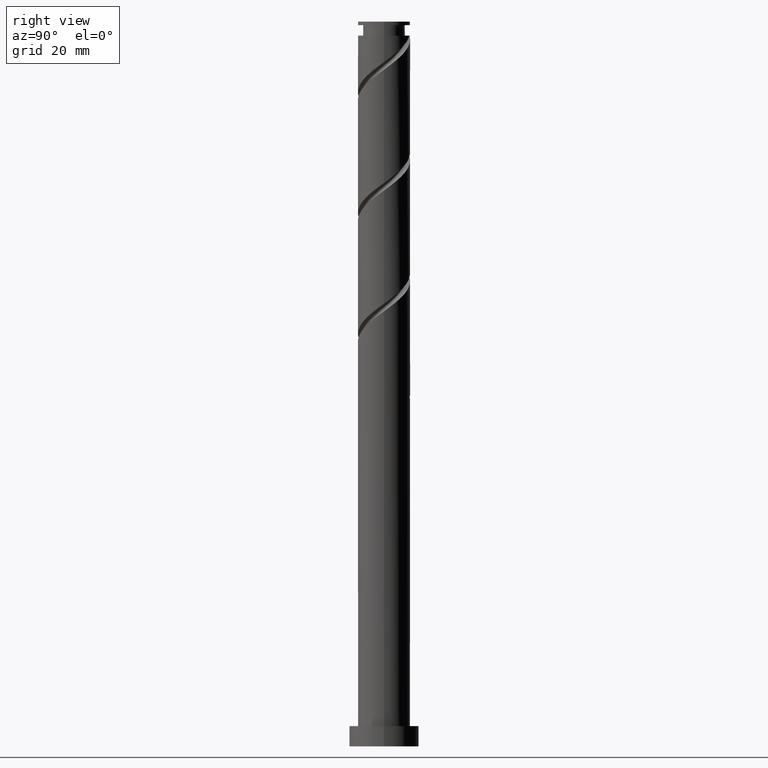
[diagram: clean part render]
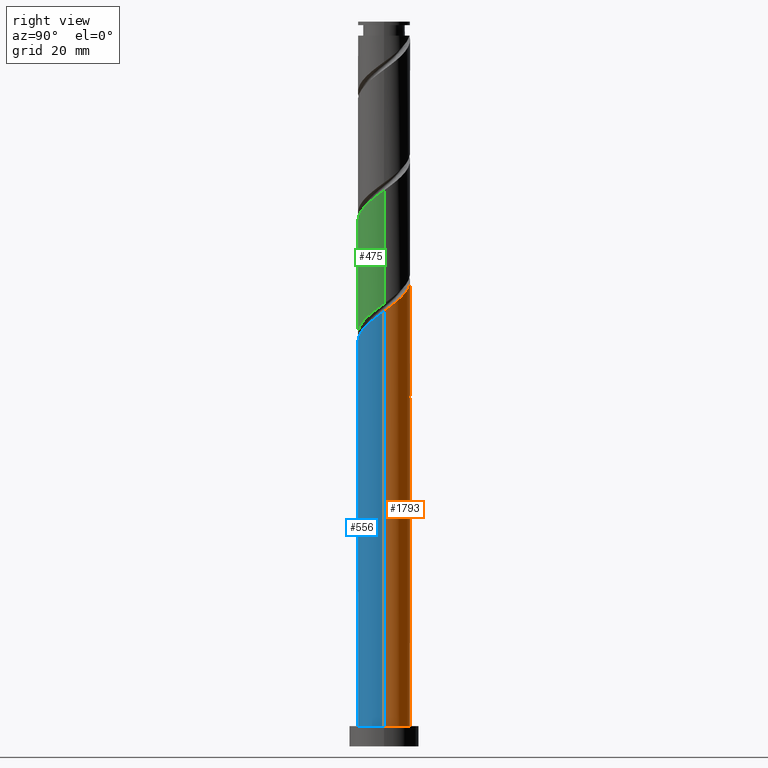
[diagram: same view with three faces highlighted in distinct colors, each labeled with its STEP entity id]
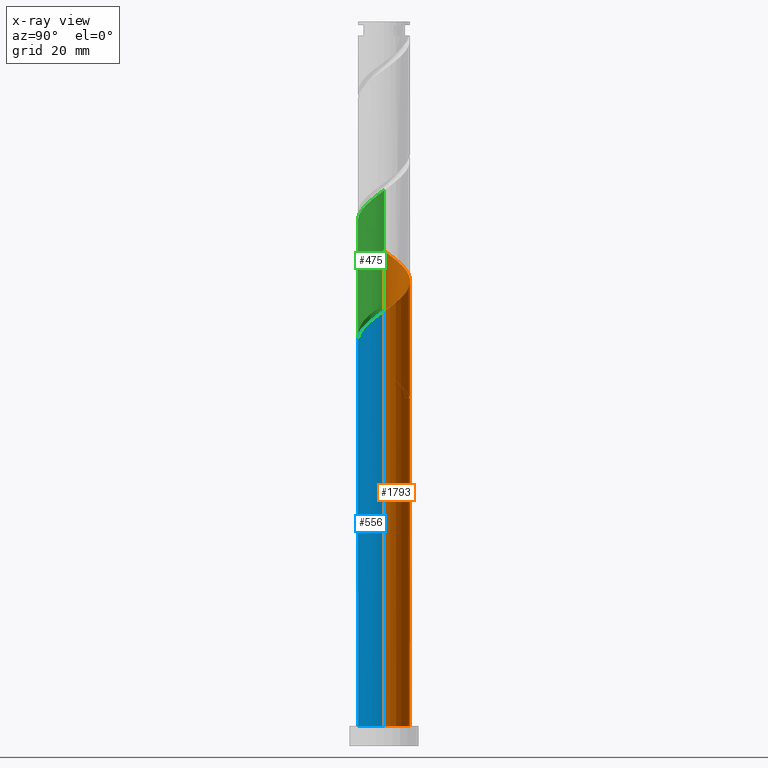
[diagram: x-ray of the same camera — body ghosted, the three highlighted faces saturated]
A machine part, right view with three faces highlighted in distinct colors.
The next image is the same camera in x-ray (body ghosted, the three faces saturated) — at least one of them is partly hidden behind the body in this view.
Their STEP definitions:

[orange] entity #1793 — the highlighted cylindrical surface (edge-blend (fillet) strip) has radius 9 mm, axis along (-0, -0, -1).
#12 = DIRECTION ( 'NONE',  ( -0.000000000000000000, -0.000000000000000000, -1.000000000000000000 ) ) ;
#24 = CARTESIAN_POINT ( 'NONE',  ( -8.539813800928584442, 2.841052665029229818, 129.7784996497130123 ) ) ;
#69 = CARTESIAN_POINT ( 'NONE',  ( 4.508176021938681721, 7.789502484447728747, 157.0220893933027355 ) ) ;
#92 = CARTESIAN_POINT ( 'NONE',  ( -7.189307669428963266, 5.414227113290511539, 166.6374740086874340 ) ) ;
#115 = ORIENTED_EDGE ( 'NONE', *, *, #242, .F. ) ;
#123 = CARTESIAN_POINT ( 'NONE',  ( -1.790977386791916759, 8.820000000000012719, 120.1631150343283565 ) ) ;
#155 = CARTESIAN_POINT ( 'NONE',  ( -3.562359181962302390, 8.336894157746552736, 124.1695252907385907 ) ) ;
#163 = LINE ( 'NONE', #321, #752 ) ;
#180 = VERTEX_POINT ( 'NONE', #1171 ) ;
#192 =( BOUNDED_CURVE ( )  B_SPLINE_CURVE ( 2, ( #123, #1445, #971, #1812, #846, #280, #1539, #249, #821, #1835, #542, #563, #1408 ),
 .UNSPECIFIED., .F., .T. ) 
 B_SPLINE_CURVE_WITH_KNOTS ( ( 3, 2, 2, 2, 2, 2, 3 ),
 ( 0.000000000000000000, 0.009615384615384581224, 0.01923076923076927347, 0.02884615384615385469, 0.03846153846153843592, 0.04807692307692312816, 0.05452716259738338983 ),
 .UNSPECIFIED. ) 
 CURVE ( )  GEOMETRIC_REPRESENTATION_ITEM ( )  RATIONAL_B_SPLINE_CURVE ( ( 0.9090909090909219392, 0.9024626128164257022, 0.9090909090909219392, 0.9024626128164257022, 0.9090909090909219392, 0.9024626128164257022, 0.9090909090909219392, 0.9024626128164257022, 0.9090909090909219392, 0.9024626128164257022, 0.9090909090909219392, 0.9046444828382820269, 0.9061636035682769652 ) ) 
 REPRESENTATION_ITEM ( '' )  );
#200 = CARTESIAN_POINT ( 'NONE',  ( 6.241326581552883113, 6.484276559678931129, 155.4195252907386759 ) ) ;
#209 = CARTESIAN_POINT ( 'NONE',  ( -9.000000000000010658, -2.542509550658754129E-15, 129.2518598251031960 ) ) ;
#220 = CARTESIAN_POINT ( 'NONE',  ( 5.453992861915053503, 7.242110811148886995, 156.2208073420206063 ) ) ;
#233 = CARTESIAN_POINT ( 'NONE',  ( -8.276108812811237669, 3.536385572658670817, 168.2400381112515220 ) ) ;
#242 = EDGE_CURVE ( 'NONE', #852, #1554, #581, .T. ) ;
#249 = CARTESIAN_POINT ( 'NONE',  ( -7.846713863140430512, 4.541287118073438656, 125.7720893933027213 ) ) ;
#280 = CARTESIAN_POINT ( 'NONE',  ( -6.531901475717493355, 6.287167108507581759, 124.1695252907385907 ) ) ;
#284 = CARTESIAN_POINT ( 'NONE',  ( 1.790977386791919423, 8.819999999999998508, 120.1631150343283565 ) ) ;
#304 = EDGE_CURVE ( 'NONE', #670, #1554, #452, .T. ) ;
#311 = DIRECTION ( 'NONE',  ( -6.847750913376839834E-30, -1.156482317317872080E-14, -1.000000000000000000 ) ) ;
#315 = CARTESIAN_POINT ( 'NONE',  ( 9.000000000000000000, 1.102182119232617714E-15, 250.0000000000000000 ) ) ;
#317 = CARTESIAN_POINT ( 'NONE',  ( -7.611753926546273696, 4.802208050647885251, 128.1759355471488959 ) ) ;
#321 = CARTESIAN_POINT ( 'NONE',  ( -9.000000000000000000, 0.000000000000000000, 250.0000000000000000 ) ) ;
#330 = DIRECTION ( 'NONE',  ( -0.000000000000000000, -0.000000000000000000, -1.000000000000000000 ) ) ;
#346 = CARTESIAN_POINT ( 'NONE',  ( 9.000000000000010658, 0.3579581730309182586, 150.3493640740694843 ) ) ;
#356 = CARTESIAN_POINT ( 'NONE',  ( -9.000000000000012434, 0.7313079468334050537, 170.3788257544214559 ) ) ;
#365 = CARTESIAN_POINT ( 'NONE',  ( 0.3718293201155639105, 8.992315772741891422, 160.2272175984309115 ) ) ;
#425 = CARTESIAN_POINT ( 'NONE',  ( -8.194847551901844440, 3.877973793086807675, 128.9772175984309115 ) ) ;
#451 = CARTESIAN_POINT ( 'NONE',  ( 0.000000000000000000, 0.000000000000000000, 120.1631150343284702 ) ) ;
#452 = CIRCLE ( 'NONE', #1766, 9.000000000000000000 ) ;
#497 = DIRECTION ( 'NONE',  ( -1.000000000000000000, 0.000000000000000000, 0.000000000000000000 ) ) ;
#519 = CARTESIAN_POINT ( 'NONE',  ( -5.684690096369586776, 6.977413454012721949, 165.0349099061232323 ) ) ;
#523 = EDGE_CURVE ( 'NONE', #1002, #852, #1624, .T. ) ;
#542 = CARTESIAN_POINT ( 'NONE',  ( -8.881932594424453598, 1.453022156782447283, 128.1759355471488959 ) ) ;
#563 = CARTESIAN_POINT ( 'NONE',  ( -9.000000000000012434, 0.7313079468334041655, 128.7121590877548840 ) ) ;
#579 = FACE_OUTER_BOUND ( 'NONE', #762, .T. ) ;
#581 =( BOUNDED_CURVE ( )  B_SPLINE_CURVE ( 2, ( #1455, #1615, #874, #601, #24, #425, #317, #1596, #1197, #592, #1016, #155, #1745, #1025, #1586, #1447, #284 ),
 .UNSPECIFIED., .F., .T. ) 
 B_SPLINE_CURVE_WITH_KNOTS ( ( 3, 2, 2, 2, 2, 2, 2, 2, 3 ),
 ( 0.9295271625973833274, 0.9326923076923077094, 0.9423076923076922906, 0.9519230769230768718, 0.9615384615384615641, 0.9711538461538461453, 0.9807692307692307265, 0.9903846153846154188, 1.000000000000000000 ),
 .UNSPECIFIED. ) 
 CURVE ( )  GEOMETRIC_REPRESENTATION_ITEM ( )  RATIONAL_B_SPLINE_CURVE ( ( 0.9061636035682715251, 0.9069090390690601744, 0.9090909090909166101, 0.9024626128164202621, 0.9090909090909166101, 0.9024626128164202621, 0.9090909090909166101, 0.9024626128164202621, 0.9090909090909166101, 0.9024626128164202621, 0.9090909090909166101, 0.9024626128164202621, 0.9090909090909166101, 0.9024626128164202621, 0.9090909090909166101, 0.9024626128164202621, 0.9090909090909166101 ) ) 
 REPRESENTATION_ITEM ( '' )  );
#592 = CARTESIAN_POINT ( 'NONE',  ( -5.453992861915037516, 7.242110811148884331, 125.7720893933027213 ) ) ;
#601 = CARTESIAN_POINT ( 'NONE',  ( -8.884780049955319114, 1.804131536971649297, 130.5797817009950279 ) ) ;
#632 = CARTESIAN_POINT ( 'NONE',  ( 8.884780049955333325, 1.804131536971647742, 151.4131150343283139 ) ) ;
#638 = CARTESIAN_POINT ( 'NONE',  ( 3.562359181962309940, 8.336894157746561618, 157.8233714445847795 ) ) ;
#646 = CARTESIAN_POINT ( 'NONE',  ( 8.971570738161098291, 0.7147856253253250802, 150.6118329830463836 ) ) ;
#655 = CARTESIAN_POINT ( 'NONE',  ( -3.849698997916970455, 8.135097886653689159, 163.4323458035592012 ) ) ;
#670 = VERTEX_POINT ( 'NONE', #1262 ) ;
#683 = ORIENTED_EDGE ( 'NONE', *, *, #304, .T. ) ;
#710 = AXIS2_PLACEMENT_3D ( 'NONE', #1029, #12, #497 ) ;
#752 = VECTOR ( 'NONE', #330, 1000.000000000000000 ) ;
#762 = EDGE_LOOP ( 'NONE', ( #1075, #946, #1700, #1829, #1299, #683, #115, #1674 ) ) ;
#765 = DIRECTION ( 'NONE',  ( 0.000000000000000000, 0.000000000000000000, 1.000000000000000000 ) ) ;
#783 = CARTESIAN_POINT ( 'NONE',  ( 7.028660301190711834, 5.726442308208963716, 154.6182432394565467 ) ) ;
#809 = VECTOR ( 'NONE', #1462, 1000.000000000000000 ) ;
#821 = CARTESIAN_POINT ( 'NONE',  ( -8.276108812811237669, 3.536385572658670817, 126.5733714445848079 ) ) ;
#846 = CARTESIAN_POINT ( 'NONE',  ( -5.684690096369586776, 6.977413454012721949, 123.3682432394565893 ) ) ;
#852 = VERTEX_POINT ( 'NONE', #1170 ) ;
#856 = CARTESIAN_POINT ( 'NONE',  ( 9.000000000000000000, 1.102182119232617714E-15, 7.000000000000000000 ) ) ;
#874 = CARTESIAN_POINT ( 'NONE',  ( -8.971570738161085856, 0.7147856253253312975, 131.3810637522771287 ) ) ;
#887 = CARTESIAN_POINT ( 'NONE',  ( 9.000000000000010658, 1.346034467995811195E-15, 150.0851931584365104 ) ) ;
#900 = CARTESIAN_POINT ( 'NONE',  ( 0.000000000000000000, 0.000000000000000000, 7.000000000000000000 ) ) ;
#946 = ORIENTED_EDGE ( 'NONE', *, *, #1165, .T. ) ;
#951 = CARTESIAN_POINT ( 'NONE',  ( -0.7200354947715738030, 9.037464026210505708, 161.0284996497129555 ) ) ;
#957 = CARTESIAN_POINT ( 'NONE',  ( 7.611753926546286131, 4.802208050647890580, 153.8169611881745595 ) ) ;
#971 = CARTESIAN_POINT ( 'NONE',  ( -3.849698997916970455, 8.135097886653689159, 121.7656791368924871 ) ) ;
#1002 = VERTEX_POINT ( 'NONE', #1572 ) ;
#1011 = EDGE_CURVE ( 'NONE', #670, #1309, #192, .T. ) ;
#1016 = CARTESIAN_POINT ( 'NONE',  ( -4.508176021938668399, 7.789502484447719866, 124.9708073420207199 ) ) ;
#1025 = CARTESIAN_POINT ( 'NONE',  ( -1.463694135002685970, 8.947167519273264702, 122.5669611881744601 ) ) ;
#1029 = CARTESIAN_POINT ( 'NONE',  ( 0.000000000000000000, 0.000000000000000000, 250.0000000000000000 ) ) ;
#1043 = DIRECTION ( 'NONE',  ( 0.000000000000000000, 1.000000000000000000, -1.233581138472396191E-14 ) ) ;
#1057 = EDGE_CURVE ( 'NONE', #1309, #180, #163, .T. ) ;
#1075 = ORIENTED_EDGE ( 'NONE', *, *, #1346, .F. ) ;
#1079 = CARTESIAN_POINT ( 'NONE',  ( -6.531901475717493355, 6.287167108507581759, 165.8361919574052195 ) ) ;
#1087 = EDGE_CURVE ( 'NONE', #1542, #180, #1789, .T. ) ;
#1165 = EDGE_CURVE ( 'NONE', #1667, #1542, #1603, .T. ) ;
#1170 = CARTESIAN_POINT ( 'NONE',  ( -9.000000000000000000, 5.922551659181603811E-15, 131.9077035768869166 ) ) ;
#1171 = CARTESIAN_POINT ( 'NONE',  ( -9.000000000000000000, 0.000000000000000000, 7.000000000000000000 ) ) ;
#1197 = CARTESIAN_POINT ( 'NONE',  ( -6.241326581552870678, 6.484276559678924912, 126.5733714445848079 ) ) ;
#1219 = CARTESIAN_POINT ( 'NONE',  ( -2.861919278812257161, 8.602535973789512624, 162.6310637522771003 ) ) ;
#1224 = CARTESIAN_POINT ( 'NONE',  ( 8.194847551901856875, 3.877973793086807230, 153.0156791368924303 ) ) ;
#1226 = CARTESIAN_POINT ( 'NONE',  ( -9.000000000000000000, 0.000000000000000000, 250.0000000000000000 ) ) ;
#1231 = CARTESIAN_POINT ( 'NONE',  ( 2.513026658482507170, 8.642030838509922930, 158.6246534958668803 ) ) ;
#1238 = CARTESIAN_POINT ( 'NONE',  ( -4.837478717021678420, 7.667659799517859476, 164.2336278548411599 ) ) ;
#1249 = CARTESIAN_POINT ( 'NONE',  ( -9.000000000000010658, -2.542509550658754523E-15, 170.9185264917697964 ) ) ;
#1262 = CARTESIAN_POINT ( 'NONE',  ( -1.790977386791916759, 8.820000000000012719, 120.1631150343283565 ) ) ;
#1299 = ORIENTED_EDGE ( 'NONE', *, *, #1011, .F. ) ;
#1309 = VERTEX_POINT ( 'NONE', #209 ) ;
#1310 =( BOUNDED_CURVE ( )  B_SPLINE_CURVE ( 2, ( #1385, #346, #646, #632, #1494, #1224, #957, #783, #200, #220, #69, #638, #1231, #1795, #365, #951, #1517, #1219, #655, #1238, #519, #1079, #92, #1526, #233, #1775, #1787, #356, #1249 ),
 .UNSPECIFIED., .F., .T. ) 
 B_SPLINE_CURVE_WITH_KNOTS ( ( 3, 2, 2, 2, 2, 2, 2, 2, 2, 2, 2, 2, 2, 2, 3 ),
 ( 0.1795271625973833829, 0.1826923076923077094, 0.1923076923076922906, 0.2019230769230768718, 0.2115384615384615641, 0.2211538461538461453, 0.2307692307692307265, 0.2403846153846154188, 0.2500000000000000000, 0.2596153846153845812, 0.2692307692307692735, 0.2788461538461538547, 0.2884615384615384359, 0.2980769230769231282, 0.3045271625973833829 ),
 .UNSPECIFIED. ) 
 CURVE ( )  GEOMETRIC_REPRESENTATION_ITEM ( )  RATIONAL_B_SPLINE_CURVE ( ( 0.9061636035682768542, 0.9069090390690655035, 0.9090909090909219392, 0.9024626128164257022, 0.9090909090909219392, 0.9024626128164257022, 0.9090909090909219392, 0.9024626128164257022, 0.9090909090909219392, 0.9024626128164257022, 0.9090909090909219392, 0.9024626128164257022, 0.9090909090909219392, 0.9024626128164257022, 0.9090909090909219392, 0.9024626128164257022, 0.9090909090909219392, 0.9024626128164257022, 0.9090909090909219392, 0.9024626128164257022, 0.9090909090909219392, 0.9024626128164257022, 0.9090909090909219392, 0.9024626128164257022, 0.9090909090909219392, 0.9024626128164257022, 0.9090909090909219392, 0.9046444828382821379, 0.9061636035682768542 ) ) 
 REPRESENTATION_ITEM ( '' )  );
#1314 = VECTOR ( 'NONE', #1373, 1000.000000000000000 ) ;
#1333 = CYLINDRICAL_SURFACE ( 'NONE', #710, 9.000000000000000000 ) ;
#1346 = EDGE_CURVE ( 'NONE', #1667, #1002, #1310, .T. ) ;
#1373 = DIRECTION ( 'NONE',  ( -0.000000000000000000, -0.000000000000000000, -1.000000000000000000 ) ) ;
#1385 = CARTESIAN_POINT ( 'NONE',  ( 9.000000000000010658, 1.346034467995811195E-15, 150.0851931584364820 ) ) ;
#1408 = CARTESIAN_POINT ( 'NONE',  ( -9.000000000000010658, -2.542509550658754129E-15, 129.2518598251031960 ) ) ;
#1445 = CARTESIAN_POINT ( 'NONE',  ( -2.861919278812257161, 8.602535973789512624, 120.9643970856104147 ) ) ;
#1447 = CARTESIAN_POINT ( 'NONE',  ( 0.7200354947715793541, 9.037464026210493273, 120.9643970856104431 ) ) ;
#1455 = CARTESIAN_POINT ( 'NONE',  ( -9.000000000000000000, 5.922551659181603811E-15, 131.9077035768869166 ) ) ;
#1462 = DIRECTION ( 'NONE',  ( -0.000000000000000000, -0.000000000000000000, -1.000000000000000000 ) ) ;
#1480 = DIRECTION ( 'NONE',  ( 1.000000000000000000, 0.000000000000000000, 0.000000000000000000 ) ) ;
#1494 = CARTESIAN_POINT ( 'NONE',  ( 8.539813800928598653, 2.841052665029224489, 152.2143970856104715 ) ) ;
#1517 = CARTESIAN_POINT ( 'NONE',  ( -1.790977386791916537, 8.820000000000012719, 161.8297817009950563 ) ) ;
#1526 = CARTESIAN_POINT ( 'NONE',  ( -7.846713863140430512, 4.541287118073438656, 167.4387560599693643 ) ) ;
#1539 = CARTESIAN_POINT ( 'NONE',  ( -7.189307669428963266, 5.414227113290511539, 124.9708073420207199 ) ) ;
#1542 = VERTEX_POINT ( 'NONE', #856 ) ;
#1554 = VERTEX_POINT ( 'NONE', #1714 ) ;
#1572 = CARTESIAN_POINT ( 'NONE',  ( -9.000000000000010658, -2.542509550658754129E-15, 170.9185264917697964 ) ) ;
#1586 = CARTESIAN_POINT ( 'NONE',  ( -0.3718293201155536409, 8.992315772741880764, 121.7656791368924729 ) ) ;
#1596 = CARTESIAN_POINT ( 'NONE',  ( -7.028660301190702953, 5.726442308208962828, 127.3746534958668235 ) ) ;
#1603 = LINE ( 'NONE', #315, #809 ) ;
#1615 = CARTESIAN_POINT ( 'NONE',  ( -9.000000000000000000, 0.3579581730309169818, 131.6435326612539427 ) ) ;
#1624 = LINE ( 'NONE', #1226, #1314 ) ;
#1667 = VERTEX_POINT ( 'NONE', #887 ) ;
#1674 = ORIENTED_EDGE ( 'NONE', *, *, #523, .F. ) ;
#1700 = ORIENTED_EDGE ( 'NONE', *, *, #1087, .T. ) ;
#1710 = AXIS2_PLACEMENT_3D ( 'NONE', #900, #765, #1480 ) ;
#1714 = CARTESIAN_POINT ( 'NONE',  ( 1.790977386791919423, 8.819999999999998508, 120.1631150343283565 ) ) ;
#1745 = CARTESIAN_POINT ( 'NONE',  ( -2.513026658482495179, 8.642030838509906943, 123.3682432394565751 ) ) ;
#1766 = AXIS2_PLACEMENT_3D ( 'NONE', #451, #311, #1043 ) ;
#1775 = CARTESIAN_POINT ( 'NONE',  ( -8.705503762482040386, 2.531484027243900314, 169.0413201625334807 ) ) ;
#1787 = CARTESIAN_POINT ( 'NONE',  ( -8.881932594424453598, 1.453022156782447283, 169.8426022138155531 ) ) ;
#1789 = CIRCLE ( 'NONE', #1710, 9.000000000000000000 ) ;
#1793 = ADVANCED_FACE ( 'NONE', ( #579 ), #1333, .T. ) ;
#1795 = CARTESIAN_POINT ( 'NONE',  ( 1.463694135002693297, 8.947167519273275360, 159.4259355471488107 ) ) ;
#1812 = CARTESIAN_POINT ( 'NONE',  ( -4.837478717021678420, 7.667659799517859476, 122.5669611881745027 ) ) ;
#1829 = ORIENTED_EDGE ( 'NONE', *, *, #1057, .F. ) ;
#1835 = CARTESIAN_POINT ( 'NONE',  ( -8.705503762482040386, 2.531484027243900314, 127.3746534958667951 ) ) ;

[blue] entity #556 — the highlighted cylindrical surface (edge-blend (fillet) strip) has radius 9 mm, axis along (-0, -0, -1).
#23 = CARTESIAN_POINT ( 'NONE',  ( 0.7200354947715749132, -9.037464026210505708, 140.1951663163796411 ) ) ;
#31 = CARTESIAN_POINT ( 'NONE',  ( -8.539813800928596876, -2.841052665029230262, 131.3810637522771287 ) ) ;
#154 = CARTESIAN_POINT ( 'NONE',  ( 8.881932594424453598, -1.453022156782448393, 149.0092688804822387 ) ) ;
#163 = LINE ( 'NONE', #321, #752 ) ;
#180 = VERTEX_POINT ( 'NONE', #1171 ) ;
#209 = CARTESIAN_POINT ( 'NONE',  ( -9.000000000000010658, -2.542509550658754129E-15, 129.2518598251031960 ) ) ;
#270 = CARTESIAN_POINT ( 'NONE',  ( 7.846713863140428735, -4.541287118073438656, 146.6054227266359931 ) ) ;
#282 = EDGE_LOOP ( 'NONE', ( #1277, #1162, #352, #1563 ) ) ;
#291 = CARTESIAN_POINT ( 'NONE',  ( 8.276108812811237669, -3.536385572658670817, 147.4067047779181223 ) ) ;
#300 = CARTESIAN_POINT ( 'NONE',  ( -2.513026658482501396, -8.642030838509922930, 137.7913201625334807 ) ) ;
#315 = CARTESIAN_POINT ( 'NONE',  ( 9.000000000000000000, 1.102182119232617714E-15, 250.0000000000000000 ) ) ;
#321 = CARTESIAN_POINT ( 'NONE',  ( -9.000000000000000000, 0.000000000000000000, 250.0000000000000000 ) ) ;
#322 = FACE_OUTER_BOUND ( 'NONE', #282, .T. ) ;
#330 = DIRECTION ( 'NONE',  ( -0.000000000000000000, -0.000000000000000000, -1.000000000000000000 ) ) ;
#352 = ORIENTED_EDGE ( 'NONE', *, *, #1057, .T. ) ;
#411 = CARTESIAN_POINT ( 'NONE',  ( 1.790977386791917647, -8.820000000000012719, 140.9964483676617704 ) ) ;
#433 = CARTESIAN_POINT ( 'NONE',  ( -8.194847551901853322, -3.877973793086810783, 132.1823458035591159 ) ) ;
#448 =( BOUNDED_CURVE ( )  B_SPLINE_CURVE ( 2, ( #450, #881, #573, #1032, #31, #433, #1836, #1584, #1595, #600, #591, #735, #300, #1697, #873, #23, #411, #1298, #1446, #1001, #1562, #1159, #1024, #270, #291, #1573, #154, #1327, #1042 ),
 .UNSPECIFIED., .F., .T. ) 
 B_SPLINE_CURVE_WITH_KNOTS ( ( 3, 2, 2, 2, 2, 2, 2, 2, 2, 2, 2, 2, 2, 2, 3 ),
 ( 0.05452716259738338983, 0.05769230769230770939, 0.06730769230769229061, 0.07692307692307687184, 0.08653846153846156408, 0.09615384615384614531, 0.1057692307692307265, 0.1153846153846154188, 0.1250000000000000000, 0.1346153846153845812, 0.1442307692307692735, 0.1538461538461538547, 0.1634615384615384359, 0.1730769230769231282, 0.1795271625973833829 ),
 .UNSPECIFIED. ) 
 CURVE ( )  GEOMETRIC_REPRESENTATION_ITEM ( )  RATIONAL_B_SPLINE_CURVE ( ( 0.9061636035682769652, 0.9069090390690655035, 0.9090909090909219392, 0.9024626128164257022, 0.9090909090909219392, 0.9024626128164257022, 0.9090909090909219392, 0.9024626128164257022, 0.9090909090909219392, 0.9024626128164257022, 0.9090909090909219392, 0.9024626128164257022, 0.9090909090909219392, 0.9024626128164257022, 0.9090909090909219392, 0.9024626128164257022, 0.9090909090909219392, 0.9024626128164257022, 0.9090909090909219392, 0.9024626128164257022, 0.9090909090909219392, 0.9024626128164257022, 0.9090909090909219392, 0.9024626128164257022, 0.9090909090909219392, 0.9024626128164257022, 0.9090909090909219392, 0.9046444828382821379, 0.9061636035682768542 ) ) 
 REPRESENTATION_ITEM ( '' )  );
#450 = CARTESIAN_POINT ( 'NONE',  ( -9.000000000000010658, -2.542509550658754129E-15, 129.2518598251031960 ) ) ;
#494 = DIRECTION ( 'NONE',  ( -1.000000000000000000, 0.000000000000000000, 0.000000000000000000 ) ) ;
#556 = ADVANCED_FACE ( 'NONE', ( #322 ), #1777, .T. ) ;
#573 = CARTESIAN_POINT ( 'NONE',  ( -8.971570738161096514, -0.7147856253253280778, 129.7784996497130123 ) ) ;
#591 = CARTESIAN_POINT ( 'NONE',  ( -4.508176021938681721, -7.789502484447728747, 136.1887560599694211 ) ) ;
#600 = CARTESIAN_POINT ( 'NONE',  ( -5.453992861915049062, -7.242110811148890548, 135.3874740086873203 ) ) ;
#735 = CARTESIAN_POINT ( 'NONE',  ( -3.562359181962309940, -8.336894157746561618, 136.9900381112514367 ) ) ;
#752 = VECTOR ( 'NONE', #330, 1000.000000000000000 ) ;
#758 = CARTESIAN_POINT ( 'NONE',  ( 0.000000000000000000, 0.000000000000000000, 250.0000000000000000 ) ) ;
#809 = VECTOR ( 'NONE', #1462, 1000.000000000000000 ) ;
#856 = CARTESIAN_POINT ( 'NONE',  ( 9.000000000000000000, 1.102182119232617714E-15, 7.000000000000000000 ) ) ;
#865 = EDGE_CURVE ( 'NONE', #1309, #1667, #448, .T. ) ;
#873 = CARTESIAN_POINT ( 'NONE',  ( -0.3718293201155585259, -8.992315772741891422, 139.3938842650975971 ) ) ;
#881 = CARTESIAN_POINT ( 'NONE',  ( -9.000000000000007105, -0.3579581730309210341, 129.5160307407361415 ) ) ;
#887 = CARTESIAN_POINT ( 'NONE',  ( 9.000000000000010658, 1.346034467995811195E-15, 150.0851931584365104 ) ) ;
#968 = AXIS2_PLACEMENT_3D ( 'NONE', #758, #1481, #494 ) ;
#988 = DIRECTION ( 'NONE',  ( 0.000000000000000000, 0.000000000000000000, 1.000000000000000000 ) ) ;
#1001 = CARTESIAN_POINT ( 'NONE',  ( 4.837478717021675756, -7.667659799517861252, 143.4002945215078455 ) ) ;
#1015 = EDGE_CURVE ( 'NONE', #180, #1542, #1246, .T. ) ;
#1024 = CARTESIAN_POINT ( 'NONE',  ( 7.189307669428961489, -5.414227113290514204, 145.8041406753540628 ) ) ;
#1032 = CARTESIAN_POINT ( 'NONE',  ( -8.884780049955333325, -1.804131536971649075, 130.5797817009950279 ) ) ;
#1042 = CARTESIAN_POINT ( 'NONE',  ( 9.000000000000010658, 1.346034467995811195E-15, 150.0851931584364820 ) ) ;
#1057 = EDGE_CURVE ( 'NONE', #1309, #180, #163, .T. ) ;
#1134 = CARTESIAN_POINT ( 'NONE',  ( 0.000000000000000000, 0.000000000000000000, 7.000000000000000000 ) ) ;
#1159 = CARTESIAN_POINT ( 'NONE',  ( 6.531901475717493355, -6.287167108507582647, 145.0028586240719051 ) ) ;
#1162 = ORIENTED_EDGE ( 'NONE', *, *, #865, .F. ) ;
#1165 = EDGE_CURVE ( 'NONE', #1667, #1542, #1603, .T. ) ;
#1171 = CARTESIAN_POINT ( 'NONE',  ( -9.000000000000000000, 0.000000000000000000, 7.000000000000000000 ) ) ;
#1246 = CIRCLE ( 'NONE', #1535, 9.000000000000000000 ) ;
#1277 = ORIENTED_EDGE ( 'NONE', *, *, #1165, .F. ) ;
#1298 = CARTESIAN_POINT ( 'NONE',  ( 2.861919278812254497, -8.602535973789512624, 141.7977304189437291 ) ) ;
#1309 = VERTEX_POINT ( 'NONE', #209 ) ;
#1327 = CARTESIAN_POINT ( 'NONE',  ( 9.000000000000012434, -0.7313079468334049427, 149.5454924210881984 ) ) ;
#1358 = DIRECTION ( 'NONE',  ( 1.000000000000000000, 0.000000000000000000, 0.000000000000000000 ) ) ;
#1446 = CARTESIAN_POINT ( 'NONE',  ( 3.849698997916966903, -8.135097886653689159, 142.5990124702258015 ) ) ;
#1462 = DIRECTION ( 'NONE',  ( -0.000000000000000000, -0.000000000000000000, -1.000000000000000000 ) ) ;
#1481 = DIRECTION ( 'NONE',  ( -0.000000000000000000, -0.000000000000000000, -1.000000000000000000 ) ) ;
#1535 = AXIS2_PLACEMENT_3D ( 'NONE', #1134, #988, #1358 ) ;
#1542 = VERTEX_POINT ( 'NONE', #856 ) ;
#1562 = CARTESIAN_POINT ( 'NONE',  ( 5.684690096369586776, -6.977413454012721949, 144.2015765727899179 ) ) ;
#1563 = ORIENTED_EDGE ( 'NONE', *, *, #1015, .T. ) ;
#1573 = CARTESIAN_POINT ( 'NONE',  ( 8.705503762482038610, -2.531484027243905643, 148.2079868292001947 ) ) ;
#1584 = CARTESIAN_POINT ( 'NONE',  ( -7.028660301190710058, -5.726442308208969045, 133.7849099061232039 ) ) ;
#1595 = CARTESIAN_POINT ( 'NONE',  ( -6.241326581552882224, -6.484276559678933793, 134.5861919574053047 ) ) ;
#1603 = LINE ( 'NONE', #315, #809 ) ;
#1667 = VERTEX_POINT ( 'NONE', #887 ) ;
#1697 = CARTESIAN_POINT ( 'NONE',  ( -1.463694135002692187, -8.947167519273275360, 138.5926022138154678 ) ) ;
#1777 = CYLINDRICAL_SURFACE ( 'NONE', #968, 9.000000000000000000 ) ;
#1836 = CARTESIAN_POINT ( 'NONE',  ( -7.611753926546286131, -4.802208050647889692, 132.9836278548411883 ) ) ;

[green] entity #475 — the highlighted cylindrical surface (edge-blend (fillet) strip) has radius 9 mm, axis along (-0, -0, -1).
#6 = CARTESIAN_POINT ( 'NONE',  ( -8.705503762482027952, -2.531484027243894985, 133.7849099061232323 ) ) ;
#21 = CARTESIAN_POINT ( 'NONE',  ( 7.846713863140428735, -4.541287118073438656, 188.2720893933027355 ) ) ;
#40 = CARTESIAN_POINT ( 'NONE',  ( 0.000000000000000000, 0.000000000000000000, 250.0000000000000000 ) ) ;
#59 = ORIENTED_EDGE ( 'NONE', *, *, #775, .F. ) ;
#80 = ORIENTED_EDGE ( 'NONE', *, *, #1660, .F. ) ;
#86 = AXIS2_PLACEMENT_3D ( 'NONE', #40, #1073, #1496 ) ;
#87 = CARTESIAN_POINT ( 'NONE',  ( 9.000000000000000000, -9.601712538370174632E-15, 152.7410369102202026 ) ) ;
#94 = CARTESIAN_POINT ( 'NONE',  ( 8.971570738161089409, -0.7147856253253365155, 152.2143970856104431 ) ) ;
#102 = CARTESIAN_POINT ( 'NONE',  ( -3.562359181962309940, -8.336894157746561618, 178.6567047779180939 ) ) ;
#111 = CARTESIAN_POINT ( 'NONE',  ( 6.531901475717493355, -6.287167108507582647, 186.6695252907385623 ) ) ;
#124 = CARTESIAN_POINT ( 'NONE',  ( 3.562359181962301058, -8.336894157746554512, 145.0028586240718766 ) ) ;
#132 = CARTESIAN_POINT ( 'NONE',  ( -9.000000000000007105, -0.3579581730309201459, 171.1826974074027987 ) ) ;
#136 = CARTESIAN_POINT ( 'NONE',  ( -8.881932594424442939, -1.453022156782441066, 132.9836278548411883 ) ) ;
#146 = CARTESIAN_POINT ( 'NONE',  ( -6.531901475717486250, -6.287167108507570212, 136.9900381112514367 ) ) ;
#164 = CARTESIAN_POINT ( 'NONE',  ( -4.837478717021675756, -7.667659799517845265, 138.5926022138154963 ) ) ;
#212 = LINE ( 'NONE', #1233, #1095 ) ;
#245 = VERTEX_POINT ( 'NONE', #863 ) ;
#247 = CARTESIAN_POINT ( 'NONE',  ( -5.453992861915049062, -7.242110811148890548, 177.0541406753539775 ) ) ;
#251 = VERTEX_POINT ( 'NONE', #728 ) ;
#271 = EDGE_LOOP ( 'NONE', ( #378, #80, #1014, #59 ) ) ;
#281 = CARTESIAN_POINT ( 'NONE',  ( 0.3718293201155504768, -8.992315772741880764, 142.5990124702258299 ) ) ;
#310 = CARTESIAN_POINT ( 'NONE',  ( -5.684690096369581447, -6.977413454012712180, 137.7913201625334523 ) ) ;
#348 = FACE_OUTER_BOUND ( 'NONE', #271, .T. ) ;
#378 = ORIENTED_EDGE ( 'NONE', *, *, #382, .F. ) ;
#382 = EDGE_CURVE ( 'NONE', #251, #245, #212, .T. ) ;
#396 = CARTESIAN_POINT ( 'NONE',  ( -4.508176021938681721, -7.789502484447728747, 177.8554227266361636 ) ) ;
#430 = CARTESIAN_POINT ( 'NONE',  ( -9.000000000000010658, -2.542509550658754523E-15, 170.9185264917697964 ) ) ;
#440 = CARTESIAN_POINT ( 'NONE',  ( -7.846713863140419853, -4.541287118073426221, 135.3874740086873203 ) ) ;
#457 = CARTESIAN_POINT ( 'NONE',  ( 7.189307669428961489, -5.414227113290514204, 187.4708073420207484 ) ) ;
#475 = ADVANCED_FACE ( 'NONE', ( #348 ), #486, .T. ) ;
#486 = CYLINDRICAL_SURFACE ( 'NONE', #86, 9.000000000000000000 ) ;
#523 = EDGE_CURVE ( 'NONE', #1002, #852, #1624, .T. ) ;
#524 = CARTESIAN_POINT ( 'NONE',  ( 8.539813800928582666, -2.841052665029232926, 150.6118329830462983 ) ) ;
#540 = CARTESIAN_POINT ( 'NONE',  ( 0.7200354947715749132, -9.037464026210505708, 181.8618329830462983 ) ) ;
#583 = CARTESIAN_POINT ( 'NONE',  ( -9.000000000000003553, -0.7313079468334074962, 132.4474043142352286 ) ) ;
#657 = CARTESIAN_POINT ( 'NONE',  ( 9.000000000000000000, -0.3579581730309341348, 152.4768659945872287 ) ) ;
#667 = CARTESIAN_POINT ( 'NONE',  ( -8.539813800928596876, -2.841052665029230262, 173.0477304189437859 ) ) ;
#722 = CARTESIAN_POINT ( 'NONE',  ( 8.276108812811237669, -3.536385572658670817, 189.0733714445848079 ) ) ;
#726 = CARTESIAN_POINT ( 'NONE',  ( 5.453992861915035739, -7.242110811148885219, 146.6054227266360783 ) ) ;
#727 =( BOUNDED_CURVE ( )  B_SPLINE_CURVE ( 2, ( #430, #132, #1020, #1581, #667, #870, #1443, #969, #1537, #247, #396, #102, #1273, #831, #1810, #540, #1132, #1680, #986, #1548, #1415, #111, #457, #21, #722, #1592, #778, #1183, #1639 ),
 .UNSPECIFIED., .F., .T. ) 
 B_SPLINE_CURVE_WITH_KNOTS ( ( 3, 2, 2, 2, 2, 2, 2, 2, 2, 2, 2, 2, 2, 2, 3 ),
 ( 0.3045271625973833829, 0.3076923076923077094, 0.3173076923076922906, 0.3269230769230768718, 0.3365384615384615641, 0.3461538461538461453, 0.3557692307692307265, 0.3653846153846154188, 0.3750000000000000000, 0.3846153846153845812, 0.3942307692307692735, 0.4038461538461538547, 0.4134615384615384359, 0.4230769230769231282, 0.4295271625973834939 ),
 .UNSPECIFIED. ) 
 CURVE ( )  GEOMETRIC_REPRESENTATION_ITEM ( )  RATIONAL_B_SPLINE_CURVE ( ( 0.9061636035682768542, 0.9069090390690655035, 0.9090909090909219392, 0.9024626128164257022, 0.9090909090909219392, 0.9024626128164257022, 0.9090909090909219392, 0.9024626128164257022, 0.9090909090909219392, 0.9024626128164257022, 0.9090909090909219392, 0.9024626128164257022, 0.9090909090909219392, 0.9024626128164257022, 0.9090909090909219392, 0.9024626128164257022, 0.9090909090909219392, 0.9024626128164257022, 0.9090909090909219392, 0.9024626128164257022, 0.9090909090909219392, 0.9024626128164257022, 0.9090909090909219392, 0.9024626128164257022, 0.9090909090909219392, 0.9024626128164257022, 0.9090909090909219392, 0.9046444828382820269, 0.9061636035682770762 ) ) 
 REPRESENTATION_ITEM ( '' )  );
#728 = CARTESIAN_POINT ( 'NONE',  ( 9.000000000000010658, 1.346034467995811195E-15, 191.7518598251031392 ) ) ;
#775 = EDGE_CURVE ( 'NONE', #245, #852, #1619, .T. ) ;
#778 = CARTESIAN_POINT ( 'NONE',  ( 8.881932594424453598, -1.453022156782448393, 190.6759355471488675 ) ) ;
#831 = CARTESIAN_POINT ( 'NONE',  ( -1.463694135002692187, -8.947167519273275360, 180.2592688804822103 ) ) ;
#847 = CARTESIAN_POINT ( 'NONE',  ( -8.276108812811228788, -3.536385572658662380, 134.5861919574053047 ) ) ;
#852 = VERTEX_POINT ( 'NONE', #1170 ) ;
#861 = CARTESIAN_POINT ( 'NONE',  ( 7.611753926546273696, -4.802208050647887916, 149.0092688804822387 ) ) ;
#863 = CARTESIAN_POINT ( 'NONE',  ( 9.000000000000000000, -9.601712538370176209E-15, 152.7410369102202026 ) ) ;
#870 = CARTESIAN_POINT ( 'NONE',  ( -8.194847551901853322, -3.877973793086810783, 173.8490124702258299 ) ) ;
#969 = CARTESIAN_POINT ( 'NONE',  ( -7.028660301190710058, -5.726442308208969045, 175.4515765727898611 ) ) ;
#986 = CARTESIAN_POINT ( 'NONE',  ( 3.849698997916966903, -8.135097886653689159, 184.2656791368925155 ) ) ;
#1002 = VERTEX_POINT ( 'NONE', #1572 ) ;
#1013 = CARTESIAN_POINT ( 'NONE',  ( -0.7200354947715813525, -9.037464026210493273, 141.7977304189437575 ) ) ;
#1014 = ORIENTED_EDGE ( 'NONE', *, *, #523, .T. ) ;
#1020 = CARTESIAN_POINT ( 'NONE',  ( -8.971570738161096514, -0.7147856253253280778, 171.4451663163796695 ) ) ;
#1073 = DIRECTION ( 'NONE',  ( -0.000000000000000000, -0.000000000000000000, -1.000000000000000000 ) ) ;
#1095 = VECTOR ( 'NONE', #1351, 1000.000000000000000 ) ;
#1132 = CARTESIAN_POINT ( 'NONE',  ( 1.790977386791917647, -8.820000000000012719, 182.6631150343284560 ) ) ;
#1170 = CARTESIAN_POINT ( 'NONE',  ( -9.000000000000000000, 5.922551659181603811E-15, 131.9077035768869166 ) ) ;
#1183 = CARTESIAN_POINT ( 'NONE',  ( 9.000000000000014211, -0.7313079468333922861, 191.2121590877547987 ) ) ;
#1186 = CARTESIAN_POINT ( 'NONE',  ( -7.189307669428957048, -5.414227113290499105, 136.1887560599693927 ) ) ;
#1226 = CARTESIAN_POINT ( 'NONE',  ( -9.000000000000000000, 0.000000000000000000, 250.0000000000000000 ) ) ;
#1233 = CARTESIAN_POINT ( 'NONE',  ( 9.000000000000000000, 1.102182119232617714E-15, 250.0000000000000000 ) ) ;
#1273 = CARTESIAN_POINT ( 'NONE',  ( -2.513026658482501396, -8.642030838509922930, 179.4579868292001947 ) ) ;
#1308 = CARTESIAN_POINT ( 'NONE',  ( -2.861919278812258494, -8.602535973789498414, 140.1951663163796411 ) ) ;
#1314 = VECTOR ( 'NONE', #1373, 1000.000000000000000 ) ;
#1336 = CARTESIAN_POINT ( 'NONE',  ( 4.508176021938667510, -7.789502484447719866, 145.8041406753540628 ) ) ;
#1351 = DIRECTION ( 'NONE',  ( -0.000000000000000000, -0.000000000000000000, -1.000000000000000000 ) ) ;
#1373 = DIRECTION ( 'NONE',  ( -0.000000000000000000, -0.000000000000000000, -1.000000000000000000 ) ) ;
#1415 = CARTESIAN_POINT ( 'NONE',  ( 5.684690096369586776, -6.977413454012721949, 185.8682432394566035 ) ) ;
#1428 = CARTESIAN_POINT ( 'NONE',  ( 7.028660301190697623, -5.726442308208965493, 148.2079868292001663 ) ) ;
#1437 = CARTESIAN_POINT ( 'NONE',  ( -9.000000000000000000, 5.922551659181603811E-15, 131.9077035768869166 ) ) ;
#1443 = CARTESIAN_POINT ( 'NONE',  ( -7.611753926546286131, -4.802208050647889692, 174.6502945215078455 ) ) ;
#1454 = CARTESIAN_POINT ( 'NONE',  ( 6.241326581552870678, -6.484276559678924912, 147.4067047779181792 ) ) ;
#1463 = CARTESIAN_POINT ( 'NONE',  ( 1.463694135002682639, -8.947167519273266478, 143.4002945215078455 ) ) ;
#1496 = DIRECTION ( 'NONE',  ( -1.000000000000000000, 0.000000000000000000, 0.000000000000000000 ) ) ;
#1537 = CARTESIAN_POINT ( 'NONE',  ( -6.241326581552882224, -6.484276559678933793, 176.2528586240720188 ) ) ;
#1548 = CARTESIAN_POINT ( 'NONE',  ( 4.837478717021675756, -7.667659799517861252, 185.0669611881744459 ) ) ;
#1572 = CARTESIAN_POINT ( 'NONE',  ( -9.000000000000010658, -2.542509550658754129E-15, 170.9185264917697964 ) ) ;
#1581 = CARTESIAN_POINT ( 'NONE',  ( -8.884780049955333325, -1.804131536971649075, 172.2464483676616567 ) ) ;
#1592 = CARTESIAN_POINT ( 'NONE',  ( 8.705503762482038610, -2.531484027243905643, 189.8746534958668235 ) ) ;
#1604 = CARTESIAN_POINT ( 'NONE',  ( -1.790977386791918313, -8.819999999999998508, 140.9964483676617704 ) ) ;
#1619 =( BOUNDED_CURVE ( )  B_SPLINE_CURVE ( 2, ( #87, #657, #94, #1797, #524, #1666, #861, #1428, #1454, #726, #1336, #124, #1718, #1463, #281, #1013, #1604, #1308, #1706, #164, #310, #146, #1186, #440, #847, #6, #136, #583, #1437 ),
 .UNSPECIFIED., .F., .T. ) 
 B_SPLINE_CURVE_WITH_KNOTS ( ( 3, 2, 2, 2, 2, 2, 2, 2, 2, 2, 2, 2, 2, 2, 3 ),
 ( 0.8045271625973834384, 0.8076923076923077094, 0.8173076923076922906, 0.8269230769230768718, 0.8365384615384615641, 0.8461538461538461453, 0.8557692307692307265, 0.8653846153846154188, 0.8750000000000000000, 0.8846153846153845812, 0.8942307692307692735, 0.9038461538461538547, 0.9134615384615384359, 0.9230769230769231282, 0.9295271625973833274 ),
 .UNSPECIFIED. ) 
 CURVE ( )  GEOMETRIC_REPRESENTATION_ITEM ( )  RATIONAL_B_SPLINE_CURVE ( ( 0.9061636035682715251, 0.9069090390690601744, 0.9090909090909166101, 0.9024626128164202621, 0.9090909090909166101, 0.9024626128164202621, 0.9090909090909166101, 0.9024626128164202621, 0.9090909090909166101, 0.9024626128164202621, 0.9090909090909166101, 0.9024626128164202621, 0.9090909090909166101, 0.9024626128164202621, 0.9090909090909166101, 0.9024626128164202621, 0.9090909090909166101, 0.9024626128164202621, 0.9090909090909166101, 0.9024626128164202621, 0.9090909090909166101, 0.9024626128164202621, 0.9090909090909166101, 0.9024626128164202621, 0.9090909090909166101, 0.9024626128164202621, 0.9090909090909166101, 0.9046444828382766978, 0.9061636035682715251 ) ) 
 REPRESENTATION_ITEM ( '' )  );
#1624 = LINE ( 'NONE', #1226, #1314 ) ;
#1639 = CARTESIAN_POINT ( 'NONE',  ( 9.000000000000010658, 1.346034467995811195E-15, 191.7518598251031392 ) ) ;
#1660 = EDGE_CURVE ( 'NONE', #1002, #251, #727, .T. ) ;
#1666 = CARTESIAN_POINT ( 'NONE',  ( 8.194847551901844440, -3.877973793086807230, 149.8105509317641975 ) ) ;
#1680 = CARTESIAN_POINT ( 'NONE',  ( 2.861919278812254497, -8.602535973789512624, 183.4643970856103579 ) ) ;
#1706 = CARTESIAN_POINT ( 'NONE',  ( -3.849698997916966903, -8.135097886653673172, 139.3938842650975971 ) ) ;
#1718 = CARTESIAN_POINT ( 'NONE',  ( 2.513026658482494291, -8.642030838509906943, 144.2015765727898895 ) ) ;
#1797 = CARTESIAN_POINT ( 'NONE',  ( 8.884780049955319114, -1.804131536971650407, 151.4131150343283423 ) ) ;
#1810 = CARTESIAN_POINT ( 'NONE',  ( -0.3718293201155585259, -8.992315772741891422, 181.0605509317643111 ) ) ;